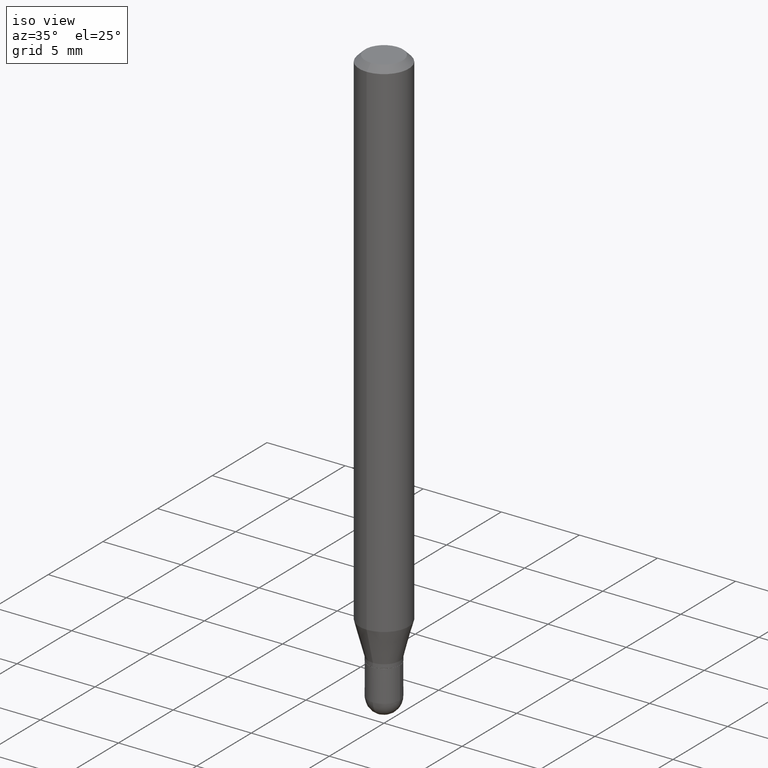
[diagram: clean part render]
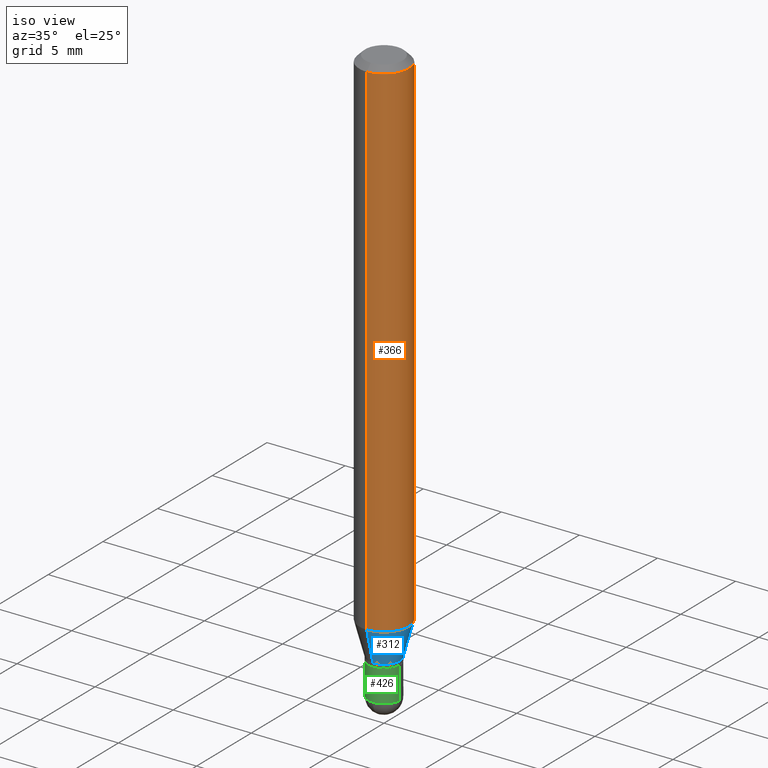
[diagram: same view with three faces highlighted in distinct colors, each labeled with its STEP entity id]
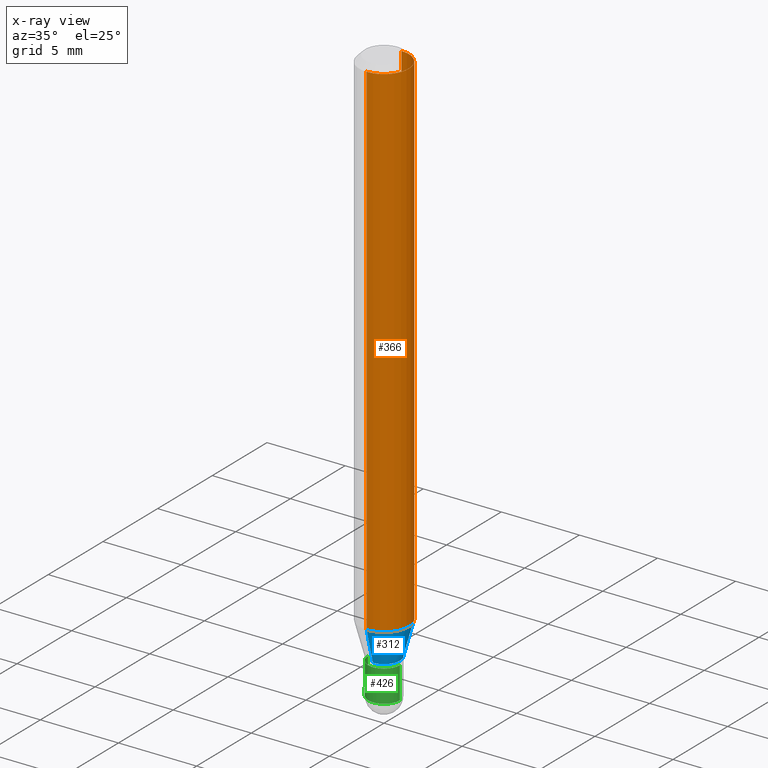
[diagram: x-ray of the same camera — body ghosted, the three highlighted faces saturated]
A machine part, iso view with three faces highlighted in distinct colors.
The next image is the same camera in x-ray (body ghosted, the three faces saturated) — at least one of them is partly hidden behind the body in this view.
Their STEP definitions:

[orange] entity #366 — the highlighted cylindrical surface (edge-blend (fillet) strip) has radius 1.5875 mm, axis along (-0, 0, 1).
#17 = EDGE_CURVE ( 'NONE', #503, #199, #256, .T. ) ;
#25 = ORIENTED_EDGE ( 'NONE', *, *, #350, .T. ) ;
#36 = CARTESIAN_POINT ( 'NONE',  ( 3.144926989475098704E-29, -4.490169331870139407E-15, -1.286028856829700473 ) ) ;
#37 = AXIS2_PLACEMENT_3D ( 'NONE', #468, #218, #378 ) ;
#47 = AXIS2_PLACEMENT_3D ( 'NONE', #36, #226, #504 ) ;
#71 = ORIENTED_EDGE ( 'NONE', *, *, #74, .F. ) ;
#74 = EDGE_CURVE ( 'NONE', #199, #180, #391, .T. ) ;
#84 = CARTESIAN_POINT ( 'NONE',  ( 4.440892098500625669E-16, 0.06250000000000000000, -2.182187295032418446E-16 ) ) ;
#95 = CYLINDRICAL_SURFACE ( 'NONE', #37, 0.06250000000000000000 ) ;
#110 = DIRECTION ( 'NONE',  ( -2.445456004173908288E-29, 3.491499672051869513E-15, 1.000000000000000000 ) ) ;
#122 = VECTOR ( 'NONE', #110, 39.37007874015748143 ) ;
#127 = CARTESIAN_POINT ( 'NONE',  ( -4.364351673553598685E-16, -0.06250000000000444089, -1.286028856829700251 ) ) ;
#140 = CIRCLE ( 'NONE', #47, 0.06250000000000000000 ) ;
#146 = EDGE_CURVE ( 'NONE', #503, #458, #140, .T. ) ;
#164 = CARTESIAN_POINT ( 'NONE',  ( 4.440892098500941706E-16, 0.06249999999999995143, -0.01500000000000022669 ) ) ;
#180 = VERTEX_POINT ( 'NONE', #164 ) ;
#199 = VERTEX_POINT ( 'NONE', #474 ) ;
#218 = DIRECTION ( 'NONE',  ( -2.445456004173908568E-29, 3.491499672051869513E-15, 1.000000000000000000 ) ) ;
#226 = DIRECTION ( 'NONE',  ( -2.445456004173908568E-29, 3.491499672051869513E-15, 1.000000000000000000 ) ) ;
#256 = LINE ( 'NONE', #462, #122 ) ;
#288 = LINE ( 'NONE', #84, #397 ) ;
#293 = FACE_OUTER_BOUND ( 'NONE', #469, .T. ) ;
#330 = DIRECTION ( 'NONE',  ( -2.445456004173908288E-29, 3.491499672051869513E-15, 1.000000000000000000 ) ) ;
#350 = EDGE_CURVE ( 'NONE', #458, #180, #288, .T. ) ;
#351 = CARTESIAN_POINT ( 'NONE',  ( 3.668184006260864919E-31, -5.237249508077807031E-17, -0.01500000000000000812 ) ) ;
#366 = ADVANCED_FACE ( 'NONE', ( #293 ), #95, .T. ) ;
#371 = ORIENTED_EDGE ( 'NONE', *, *, #146, .T. ) ;
#375 = ORIENTED_EDGE ( 'NONE', *, *, #17, .F. ) ;
#376 = AXIS2_PLACEMENT_3D ( 'NONE', #351, #415, #466 ) ;
#378 = DIRECTION ( 'NONE',  ( -6.982962677686265922E-15, -1.000000000000000000, 3.491499672051869513E-15 ) ) ;
#389 = CARTESIAN_POINT ( 'NONE',  ( 4.440892098500941706E-16, 0.06249999999999554523, -1.286028856829700695 ) ) ;
#391 = CIRCLE ( 'NONE', #376, 0.06250000000000000000 ) ;
#397 = VECTOR ( 'NONE', #330, 39.37007874015748143 ) ;
#415 = DIRECTION ( 'NONE',  ( -2.445456004173908568E-29, 3.491499672051869513E-15, 1.000000000000000000 ) ) ;
#458 = VERTEX_POINT ( 'NONE', #389 ) ;
#462 = CARTESIAN_POINT ( 'NONE',  ( -4.364351673553916201E-16, -0.06250000000000000000, 2.182187295032418446E-16 ) ) ;
#466 = DIRECTION ( 'NONE',  ( -6.982962677686265922E-15, -1.000000000000000000, 3.483106191921935554E-15 ) ) ;
#468 = CARTESIAN_POINT ( 'NONE',  ( 0.000000000000000000, 0.000000000000000000, 0.000000000000000000 ) ) ;
#469 = EDGE_LOOP ( 'NONE', ( #371, #25, #71, #375 ) ) ;
#474 = CARTESIAN_POINT ( 'NONE',  ( -4.364351673553912750E-16, -0.06250000000000005551, -0.01499999999999979128 ) ) ;
#503 = VERTEX_POINT ( 'NONE', #127 ) ;
#504 = DIRECTION ( 'NONE',  ( -6.982962677686265922E-15, -1.000000000000000000, 4.370956789862821150E-15 ) ) ;

[blue] entity #312 — the highlighted conical surface has half-angle 15 deg.
#19 = VECTOR ( 'NONE', #238, 39.37007874015748143 ) ;
#29 = EDGE_CURVE ( 'NONE', #101, #458, #338, .T. ) ;
#35 = CARTESIAN_POINT ( 'NONE',  ( 2.842170943040729659E-16, 0.03999999999999514361, -1.370000000000000329 ) ) ;
#36 = CARTESIAN_POINT ( 'NONE',  ( 3.144926989475098704E-29, -4.490169331870139407E-15, -1.286028856829700473 ) ) ;
#47 = AXIS2_PLACEMENT_3D ( 'NONE', #36, #226, #504 ) ;
#64 = DIRECTION ( 'NONE',  ( -2.445456004173908568E-29, 3.491499672051869513E-15, 1.000000000000000000 ) ) ;
#101 = VERTEX_POINT ( 'NONE', #354 ) ;
#103 = EDGE_CURVE ( 'NONE', #305, #101, #464, .T. ) ;
#112 = EDGE_LOOP ( 'NONE', ( #346, #263, #500, #260 ) ) ;
#127 = CARTESIAN_POINT ( 'NONE',  ( -4.364351673553598685E-16, -0.06250000000000444089, -1.286028856829700251 ) ) ;
#132 = AXIS2_PLACEMENT_3D ( 'NONE', #143, #306, #386 ) ;
#140 = CIRCLE ( 'NONE', #47, 0.06250000000000000000 ) ;
#143 = CARTESIAN_POINT ( 'NONE',  ( 3.350274725718254413E-29, -4.783354550711061750E-15, -1.370000000000000107 ) ) ;
#146 = EDGE_CURVE ( 'NONE', #503, #458, #140, .T. ) ;
#193 = CARTESIAN_POINT ( 'NONE',  ( 3.350274725718254413E-29, -4.783354550711061750E-15, -1.370000000000000107 ) ) ;
#226 = DIRECTION ( 'NONE',  ( -2.445456004173908568E-29, 3.491499672051869513E-15, 1.000000000000000000 ) ) ;
#238 = DIRECTION ( 'NONE',  ( -1.807323732225330534E-15, -0.2588190451025182415, 0.9659258262890689783 ) ) ;
#260 = ORIENTED_EDGE ( 'NONE', *, *, #446, .F. ) ;
#263 = ORIENTED_EDGE ( 'NONE', *, *, #29, .T. ) ;
#269 = DIRECTION ( 'NONE',  ( 1.839019923739600710E-15, 0.2588190451025250138, 0.9659258262890670910 ) ) ;
#282 = CARTESIAN_POINT ( 'NONE',  ( -2.793185071074166094E-16, -0.04000000000000470540, -1.369999999999999885 ) ) ;
#304 = FACE_OUTER_BOUND ( 'NONE', #112, .T. ) ;
#305 = VERTEX_POINT ( 'NONE', #445 ) ;
#306 = DIRECTION ( 'NONE',  ( -2.445456004173908568E-29, 3.491499672051869513E-15, 1.000000000000000000 ) ) ;
#312 = ADVANCED_FACE ( 'NONE', ( #304 ), #392, .T. ) ;
#333 = AXIS2_PLACEMENT_3D ( 'NONE', #193, #64, #454 ) ;
#338 = LINE ( 'NONE', #35, #477 ) ;
#346 = ORIENTED_EDGE ( 'NONE', *, *, #103, .T. ) ;
#354 = CARTESIAN_POINT ( 'NONE',  ( 3.641531520770834203E-16, 0.03999999999999514361, -1.370000000000000329 ) ) ;
#372 = LINE ( 'NONE', #282, #19 ) ;
#386 = DIRECTION ( 'NONE',  ( -6.982962677686265133E-15, -1.000000000000000000, 6.829619984160670865E-15 ) ) ;
#389 = CARTESIAN_POINT ( 'NONE',  ( 4.440892098500941706E-16, 0.06249999999999554523, -1.286028856829700695 ) ) ;
#392 = CONICAL_SURFACE ( 'NONE', #333, 0.03999999999999992450, 0.2617993877991502960 ) ;
#445 = CARTESIAN_POINT ( 'NONE',  ( -2.793185071074166094E-16, -0.04000000000000470540, -1.369999999999999885 ) ) ;
#446 = EDGE_CURVE ( 'NONE', #305, #503, #372, .T. ) ;
#454 = DIRECTION ( 'NONE',  ( -6.982962677686265133E-15, -1.000000000000000000, 6.829619984160670865E-15 ) ) ;
#458 = VERTEX_POINT ( 'NONE', #389 ) ;
#464 = CIRCLE ( 'NONE', #132, 0.03999999999999992450 ) ;
#477 = VECTOR ( 'NONE', #269, 39.37007874015748143 ) ;
#500 = ORIENTED_EDGE ( 'NONE', *, *, #146, .F. ) ;
#503 = VERTEX_POINT ( 'NONE', #127 ) ;
#504 = DIRECTION ( 'NONE',  ( -6.982962677686265922E-15, -1.000000000000000000, 4.370956789862821150E-15 ) ) ;

[green] entity #426 — the highlighted cylindrical surface (edge-blend (fillet) strip) has radius 1.016 mm, axis along (-0, 0, 1).
#1 = AXIS2_PLACEMENT_3D ( 'NONE', #119, #179, #297 ) ;
#4 = DIRECTION ( 'NONE',  ( 1.000000000000000000, -6.982962677686259611E-15, 0.000000000000000000 ) ) ;
#13 = EDGE_CURVE ( 'NONE', #406, #452, #311, .T. ) ;
#23 = ORIENTED_EDGE ( 'NONE', *, *, #472, .F. ) ;
#26 = VERTEX_POINT ( 'NONE', #384 ) ;
#28 = VERTEX_POINT ( 'NONE', #181 ) ;
#34 = EDGE_CURVE ( 'NONE', #26, #310, #455, .T. ) ;
#50 = DIRECTION ( 'NONE',  ( -2.445468806185136597E-29, 3.491481338843145583E-15, 1.000000000000000000 ) ) ;
#67 = AXIS2_PLACEMENT_3D ( 'NONE', #471, #118, #395 ) ;
#91 = DIRECTION ( 'NONE',  ( 1.000000000000000000, -6.982962677686259611E-15, 0.000000000000000000 ) ) ;
#118 = DIRECTION ( 'NONE',  ( -2.445468806185136597E-29, 3.491481338843145583E-15, 1.000000000000000000 ) ) ;
#119 = CARTESIAN_POINT ( 'NONE',  ( 0.000000000000000000, 0.000000000000000000, 0.000000000000000000 ) ) ;
#133 = AXIS2_PLACEMENT_3D ( 'NONE', #302, #409, #4 ) ;
#152 = CARTESIAN_POINT ( 'NONE',  ( 0.04000000000000000083, -5.097562754710991580E-15, -1.380000000000000115 ) ) ;
#179 = DIRECTION ( 'NONE',  ( -2.445468806185136597E-29, 3.491481338843145583E-15, 1.000000000000000000 ) ) ;
#181 = CARTESIAN_POINT ( 'NONE',  ( -2.842170943040045322E-16, -0.04000000000000514255, -1.459999999999999964 ) ) ;
#183 = ORIENTED_EDGE ( 'NONE', *, *, #292, .T. ) ;
#184 = DIRECTION ( 'NONE',  ( -2.445468806185136877E-29, 3.491481338843145188E-15, 1.000000000000000000 ) ) ;
#187 = ORIENTED_EDGE ( 'NONE', *, *, #34, .F. ) ;
#197 = VECTOR ( 'NONE', #498, 39.37007874015748143 ) ;
#245 = CIRCLE ( 'NONE', #508, 0.04000000000000000083 ) ;
#246 = EDGE_CURVE ( 'NONE', #28, #406, #290, .T. ) ;
#262 = CARTESIAN_POINT ( 'NONE',  ( -0.04000000000000000083, -4.673686406853227813E-15, -1.380000000000000115 ) ) ;
#264 = CARTESIAN_POINT ( 'NONE',  ( -0.04000000000000000083, 2.842170943040400803E-16, -1.967574036101962509E-30 ) ) ;
#272 = ORIENTED_EDGE ( 'NONE', *, *, #13, .T. ) ;
#290 = CIRCLE ( 'NONE', #67, 0.04000000000000000083 ) ;
#292 = EDGE_CURVE ( 'NONE', #26, #28, #245, .T. ) ;
#297 = DIRECTION ( 'NONE',  ( 1.000000000000000000, -6.982962677686265922E-15, 4.876176775795935793E-29 ) ) ;
#301 = CIRCLE ( 'NONE', #133, 0.04000000000000000083 ) ;
#302 = CARTESIAN_POINT ( 'NONE',  ( 3.374746952535488593E-29, -4.818244247603541543E-15, -1.380000000000000115 ) ) ;
#310 = VERTEX_POINT ( 'NONE', #262 ) ;
#311 = LINE ( 'NONE', #417, #197 ) ;
#318 = FACE_OUTER_BOUND ( 'NONE', #328, .T. ) ;
#326 = ORIENTED_EDGE ( 'NONE', *, *, #246, .T. ) ;
#328 = EDGE_LOOP ( 'NONE', ( #187, #183, #326, #272, #23 ) ) ;
#384 = CARTESIAN_POINT ( 'NONE',  ( -0.04000000000000000083, -4.673686406853227813E-15, -1.460000000000000187 ) ) ;
#394 = CYLINDRICAL_SURFACE ( 'NONE', #1, 0.04000000000000000083 ) ;
#395 = DIRECTION ( 'NONE',  ( 1.000000000000000000, -6.982962677686259611E-15, 0.000000000000000000 ) ) ;
#406 = VERTEX_POINT ( 'NONE', #430 ) ;
#409 = DIRECTION ( 'NONE',  ( -2.445468806185136597E-29, 3.491481338843145583E-15, 1.000000000000000000 ) ) ;
#410 = VECTOR ( 'NONE', #184, 39.37007874015748143 ) ;
#417 = CARTESIAN_POINT ( 'NONE',  ( 0.04000000000000000083, -2.793185071074506290E-16, 1.950470710318374387E-30 ) ) ;
#426 = ADVANCED_FACE ( 'NONE', ( #318 ), #394, .T. ) ;
#430 = CARTESIAN_POINT ( 'NONE',  ( 0.04000000000000000083, -5.237222008264718177E-15, -1.460000000000000187 ) ) ;
#449 = CARTESIAN_POINT ( 'NONE',  ( 3.570384457030299835E-29, -5.097562754710993947E-15, -1.460000000000000187 ) ) ;
#452 = VERTEX_POINT ( 'NONE', #152 ) ;
#455 = LINE ( 'NONE', #264, #410 ) ;
#471 = CARTESIAN_POINT ( 'NONE',  ( 3.570384457030299835E-29, -5.097562754710993947E-15, -1.460000000000000187 ) ) ;
#472 = EDGE_CURVE ( 'NONE', #310, #452, #301, .T. ) ;
#498 = DIRECTION ( 'NONE',  ( -2.445468806185136877E-29, 3.491481338843145188E-15, 1.000000000000000000 ) ) ;
#508 = AXIS2_PLACEMENT_3D ( 'NONE', #449, #50, #91 ) ;